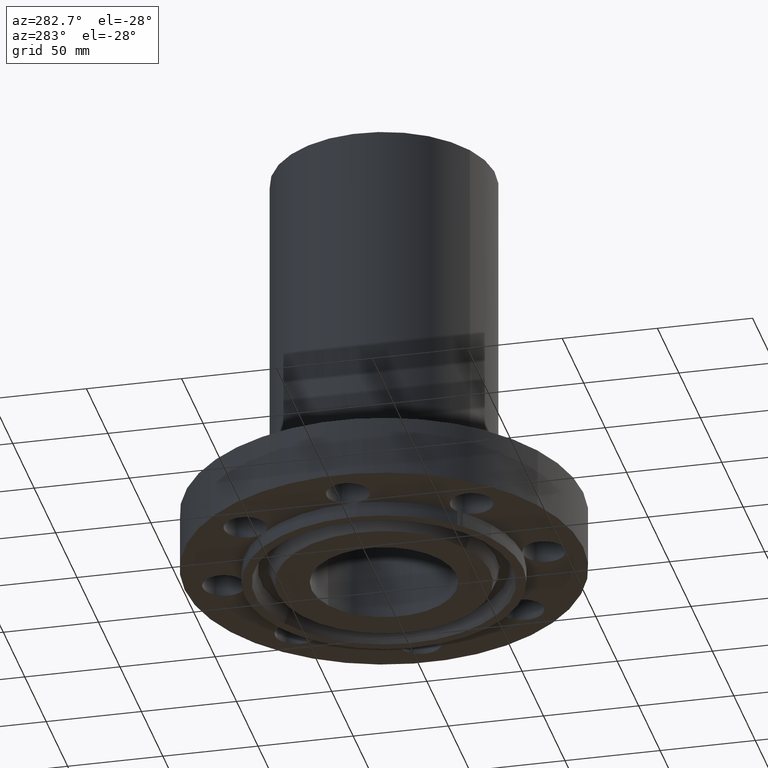
[diagram: clean part render]
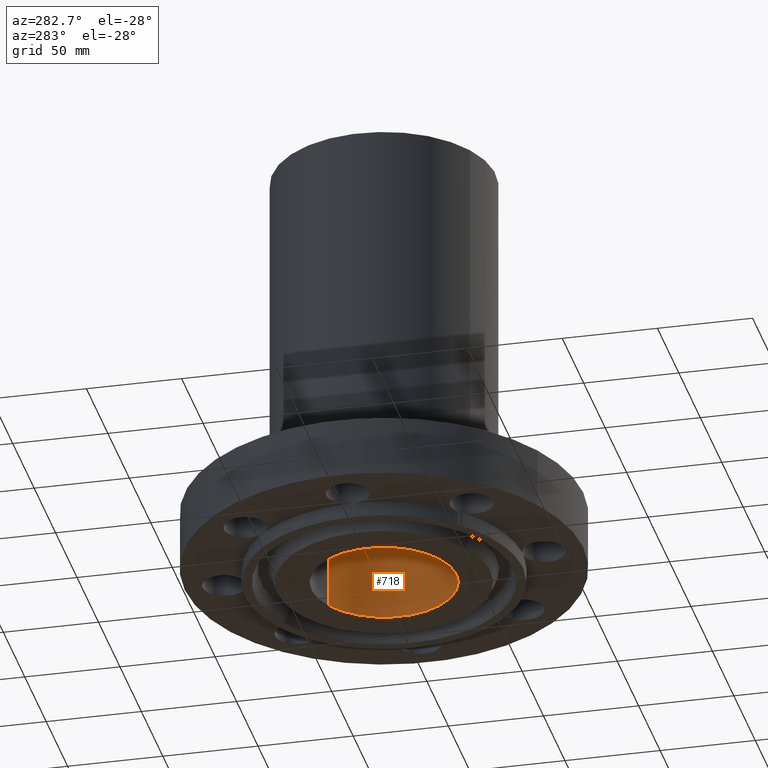
[diagram: same view with one face highlighted and labeled with its STEP entity id]
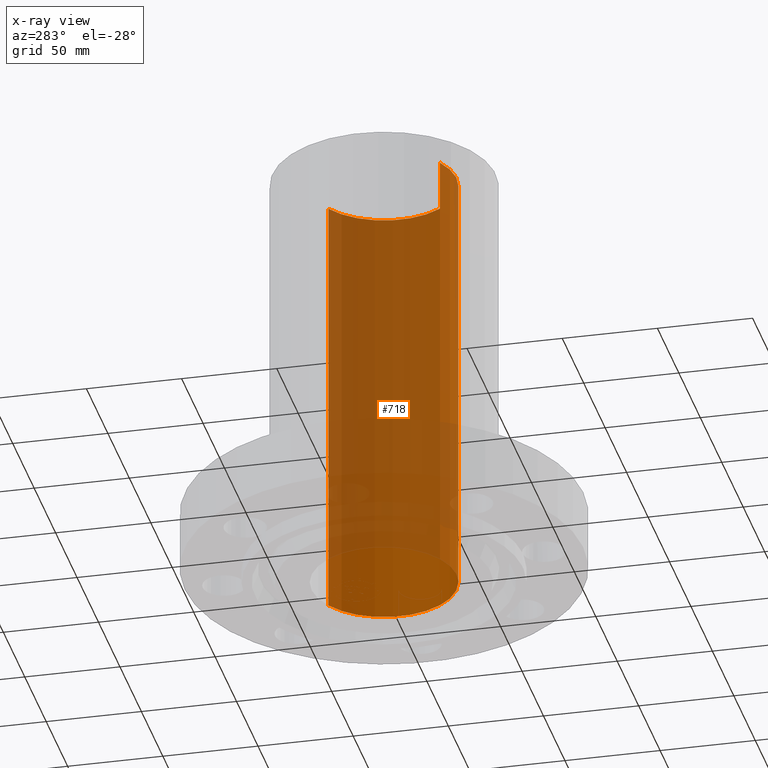
[diagram: x-ray of the same camera — body ghosted, the highlighted face saturated]
A machine part, auxiliary view. The second image highlights one B-rep face of the part: STEP entity #718.
The next image is the same camera in x-ray: the body ghosted, the highlighted face saturated — about 77% of this face is hidden behind the body in this view.
In plain terms, the highlighted cylindrical surface (partial cylindrical patch) has radius 38.1 mm, axis along (0, 0, -1).
Its self-contained STEP definition (entity closure, byte-faithful):
#680=AXIS2_PLACEMENT_3D('Circle Axis2P3D',#678,#679,$) ;
#691=AXIS2_PLACEMENT_3D('Cylinder Axis2P3D',#688,#689,#690) ;
#702=AXIS2_PLACEMENT_3D('Circle Axis2P3D',#700,#701,$) ;
#673=CARTESIAN_POINT('Vertex',(-0.719138307909,-1.31637384284,8.75000000003)) ;
#675=CARTESIAN_POINT('Vertex',(0.719138307909,1.31637384284,8.75000000003)) ;
#678=CARTESIAN_POINT('Axis2P3D Location',(0.,0.,8.75000000003)) ;
#688=CARTESIAN_POINT('Axis2P3D Location',(0.,0.,4.21850000002)) ;
#693=CARTESIAN_POINT('Line Origine',(0.719138307909,1.31637384284,4.21850000002)) ;
#697=CARTESIAN_POINT('Vertex',(0.719138307909,1.31637384284,-0.313000000001)) ;
#700=CARTESIAN_POINT('Axis2P3D Location',(0.,0.,-0.313000000001)) ;
#704=CARTESIAN_POINT('Vertex',(-0.719138307909,-1.31637384284,-0.313000000001)) ;
#707=CARTESIAN_POINT('Line Origine',(-0.719138307909,-1.31637384284,4.21850000002)) ;
#679=DIRECTION('Axis2P3D Direction',(0.,0.,-0.0393700787402)) ;
#689=DIRECTION('Axis2P3D Direction',(0.,0.,-0.0393700787402)) ;
#690=DIRECTION('Axis2P3D XDirection',(-0.0188750212049,-0.0345504945626,0.)) ;
#694=DIRECTION('Vector Direction',(0.,0.,-0.0393700787402)) ;
#701=DIRECTION('Axis2P3D Direction',(0.,0.,-0.0393700787402)) ;
#708=DIRECTION('Vector Direction',(0.,0.,-0.0393700787402)) ;
#695=VECTOR('Line Direction',#694,0.0393700787402) ;
#709=VECTOR('Line Direction',#708,0.0393700787402) ;
#713=ORIENTED_EDGE('',*,*,#682,.F.) ;
#714=ORIENTED_EDGE('',*,*,#699,.T.) ;
#715=ORIENTED_EDGE('',*,*,#706,.T.) ;
#716=ORIENTED_EDGE('',*,*,#711,.F.) ;
#718=ADVANCED_FACE('PartBody',(#717),#692,.F.) ;
#681=CIRCLE('generated circle',#680,1.50000000001) ;
#703=CIRCLE('generated circle',#702,1.50000000001) ;
#692=CYLINDRICAL_SURFACE('generated cylinder',#691,1.50000000001) ;
#682=EDGE_CURVE('',#676,#674,#681,.T.) ;
#699=EDGE_CURVE('',#676,#698,#696,.T.) ;
#706=EDGE_CURVE('',#698,#705,#703,.T.) ;
#711=EDGE_CURVE('',#674,#705,#710,.T.) ;
#712=EDGE_LOOP('',(#713,#714,#715,#716)) ;
#717=FACE_OUTER_BOUND('',#712,.T.) ;
#696=LINE('Line',#693,#695) ;
#710=LINE('Line',#707,#709) ;
#674=VERTEX_POINT('',#673) ;
#676=VERTEX_POINT('',#675) ;
#698=VERTEX_POINT('',#697) ;
#705=VERTEX_POINT('',#704) ;